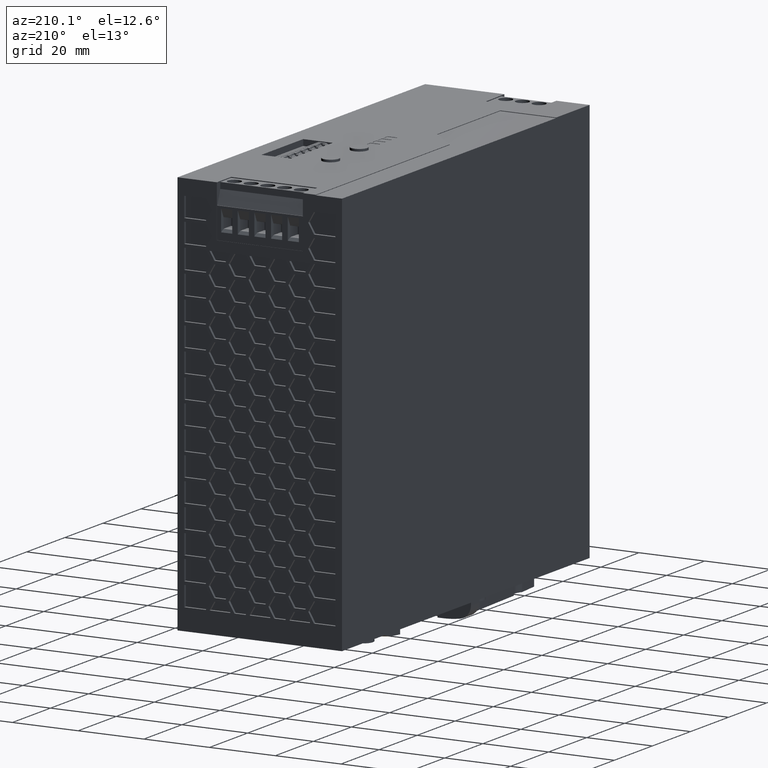
[diagram: clean part render]
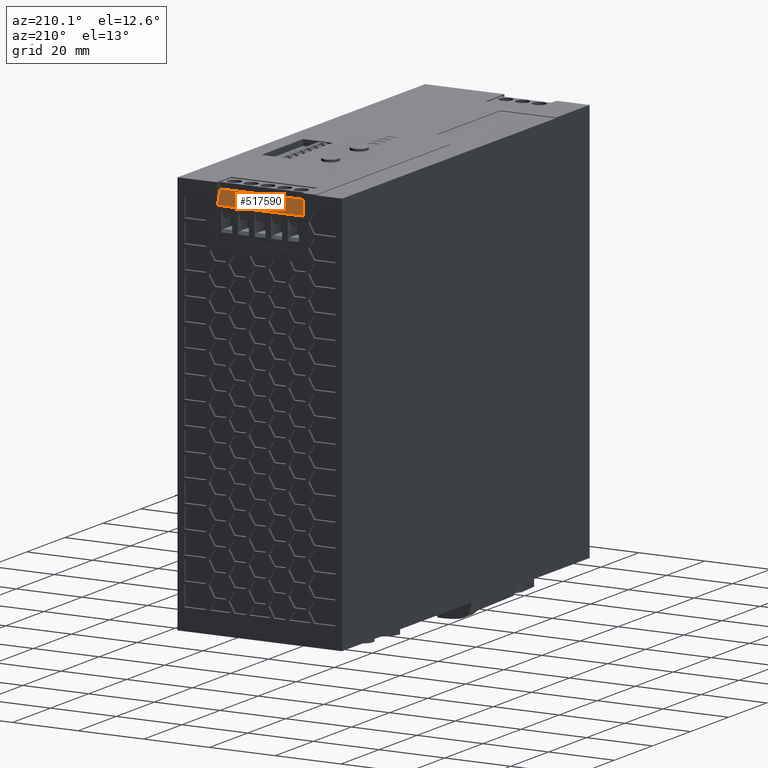
[diagram: same view with one face highlighted and labeled with its STEP entity id]
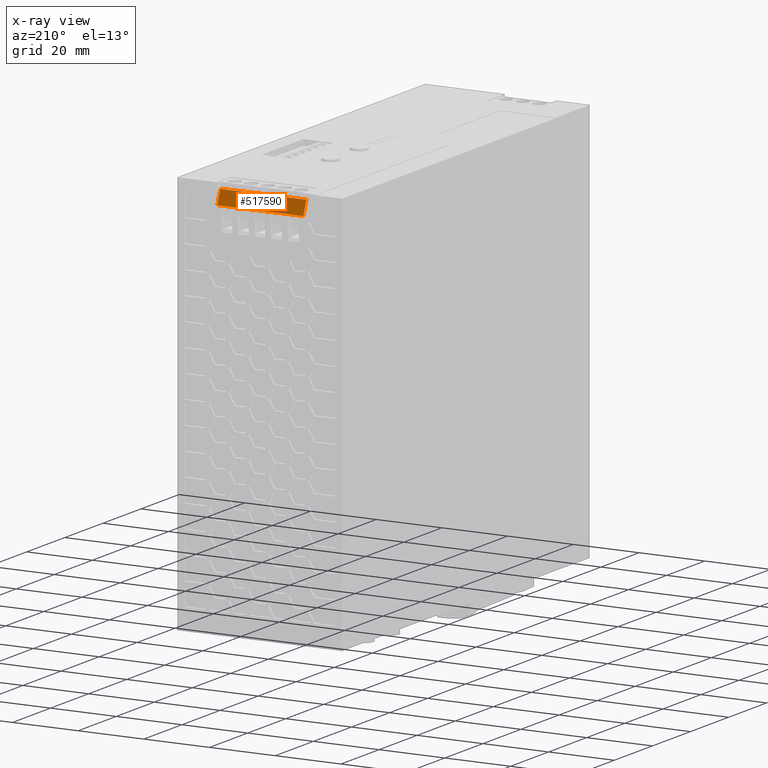
[diagram: x-ray of the same camera — body ghosted, the highlighted face saturated]
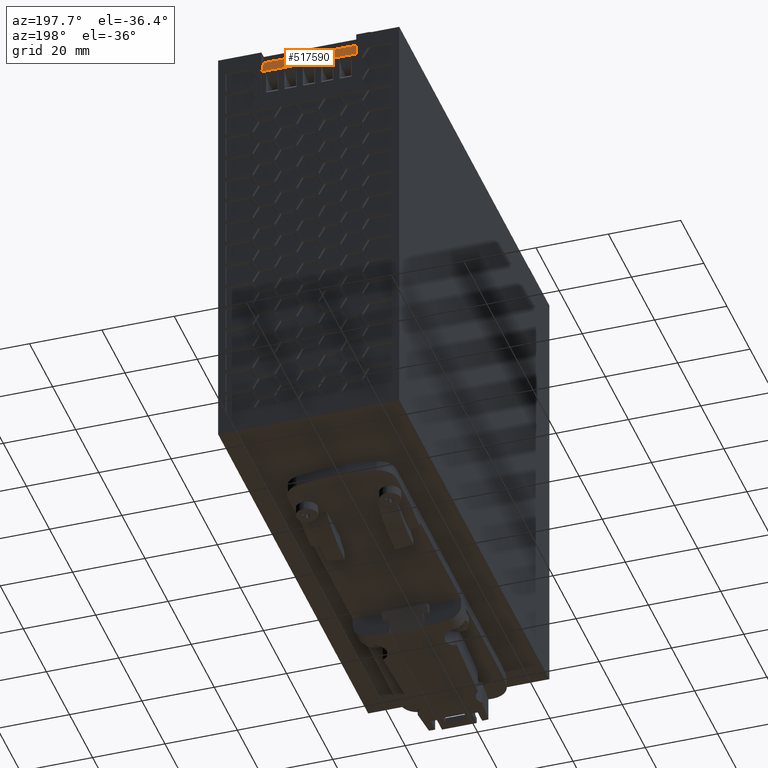
[diagram: same view with one face highlighted and labeled with its STEP entity id]
A machine part, auxiliary view. The second image highlights one B-rep face of the part: STEP entity #517590.
The next image is the same camera in x-ray: the body ghosted, the highlighted face saturated — about 0% of this face is hidden behind the body in this view.
A second angle (auxiliary view) of the same face is appended — the face is thin or edge-on in the first view.
In plain terms, the highlighted planar face has unit normal (0, 0.9397, 0.342).
Its self-contained STEP definition (entity closure, byte-faithful):
#508030=CARTESIAN_POINT('',(-2.16,115.900044444441,-0.506350036219992));
#508040=VERTEX_POINT('',#508030);
#508070=CARTESIAN_POINT('',(-2.16,0.,-42.6905163641308));
#508080=DIRECTION('',(0.,-0.939692620785897,-0.342020143325699));
#508090=VECTOR('',#508080,1.);
#508100=LINE('',#508070,#508090);
#508110=CARTESIAN_POINT('',(-2.16,120.021260573623,0.993649963780051));
#508120=VERTEX_POINT('',#508110);
#508130=EDGE_CURVE('',#508120,#508040,#508100,.T.);
#508560=CARTESIAN_POINT('',(24.04,120.021260573623,0.993649963780044));
#508570=VERTEX_POINT('',#508560);
#508600=CARTESIAN_POINT('',(24.04,0.,-42.6905163641308));
#508610=DIRECTION('',(0.,-0.939692620785897,-0.342020143325699));
#508620=VECTOR('',#508610,1.);
#508630=LINE('',#508600,#508620);
#508640=CARTESIAN_POINT('',(24.04,115.900044444441,-0.506350036219992));
#508650=VERTEX_POINT('',#508640);
#508660=EDGE_CURVE('',#508570,#508650,#508630,.T.);
#515790=CARTESIAN_POINT('',(0.,115.900044444441,-0.506350036219994));
#515800=DIRECTION('',(-1.,0.,0.));
#515810=VECTOR('',#515800,1.);
#515820=LINE('',#515790,#515810);
#515830=EDGE_CURVE('',#508650,#508040,#515820,.T.);
#517430=CARTESIAN_POINT('',(11.08,115.900044444441,-0.506350036219992));
#517440=DIRECTION('',(0.,0.342020143325699,-0.939692620785897));
#517450=DIRECTION('',(0.,0.939692620785897,0.342020143325699));
#517460=AXIS2_PLACEMENT_3D('',#517430,#517440,#517450);
#517470=PLANE('',#517460);
#517480=ORIENTED_EDGE('',*,*,#508660,.T.);
#517490=CARTESIAN_POINT('',(0.,120.021260573623,0.993649963780008));
#517500=DIRECTION('',(1.,0.,0.));
#517510=VECTOR('',#517500,1.);
#517520=LINE('',#517490,#517510);
#517530=EDGE_CURVE('',#508120,#508570,#517520,.T.);
#517540=ORIENTED_EDGE('',*,*,#517530,.T.);
#517550=ORIENTED_EDGE('',*,*,#508130,.F.);
#517560=ORIENTED_EDGE('',*,*,#515830,.T.);
#517570=EDGE_LOOP('',(#517560,#517550,#517540,#517480));
#517580=FACE_OUTER_BOUND('',#517570,.T.);
#517590=ADVANCED_FACE('',(#517580),#517470,.T.);